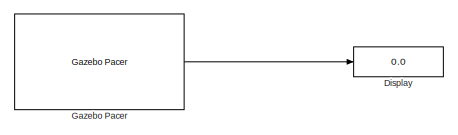
[diagram: root canvas - part 1/2, top center region]
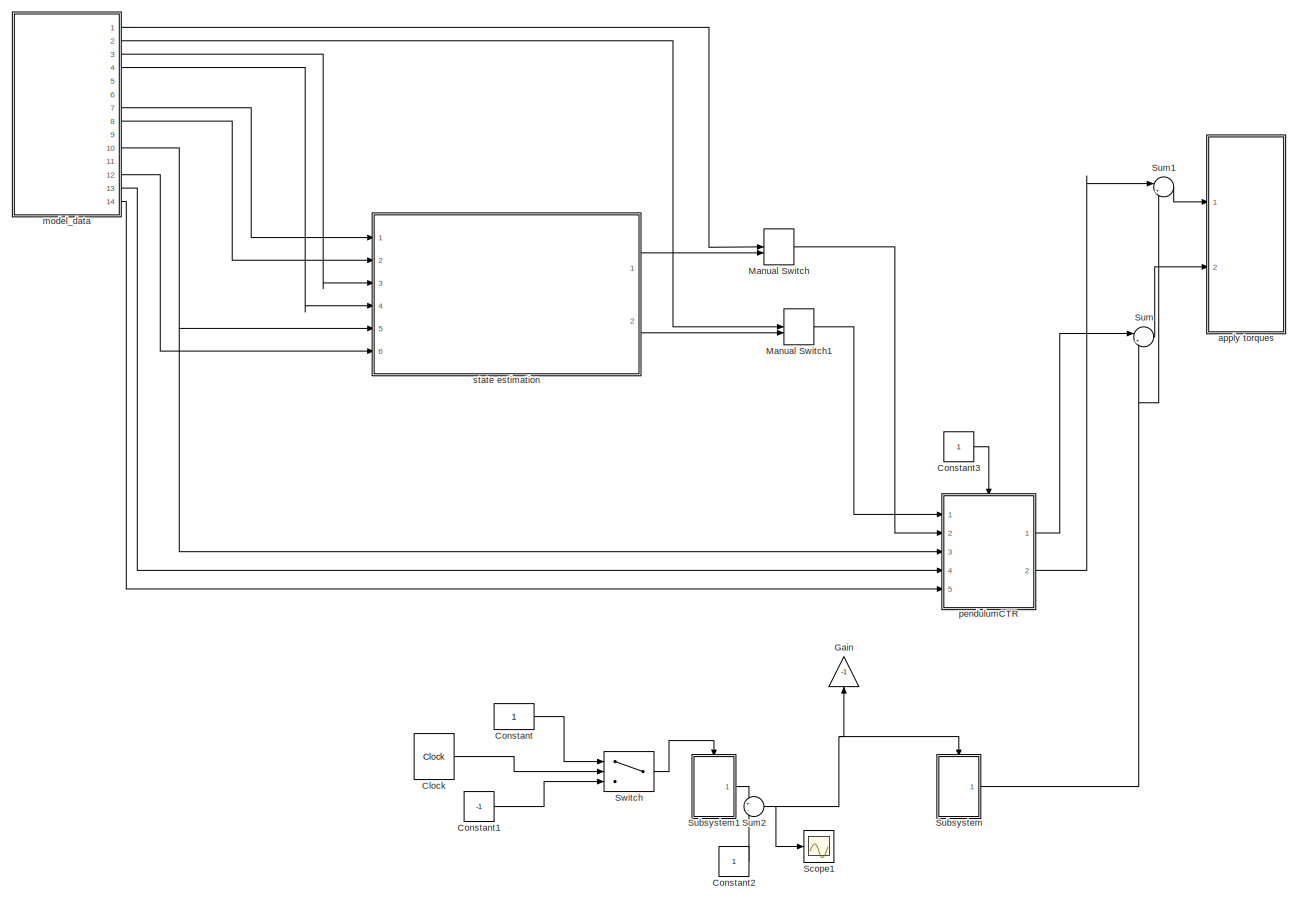
[diagram: root canvas - part 2/2, most of the canvas]
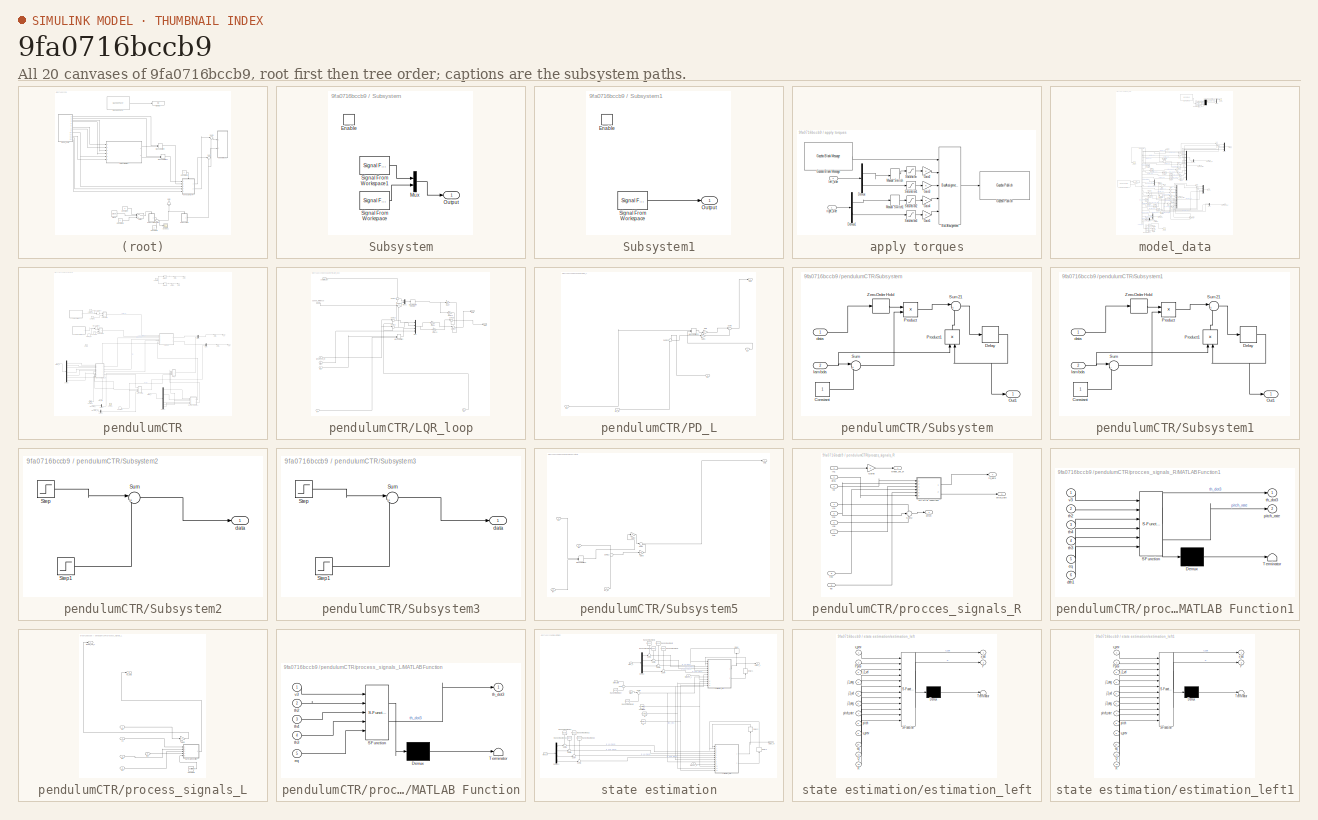
[diagram: thumbnail index - all 20 canvases of the model, root first then tree order]
MODEL slx_9fa0716bccb9
KIND model
CONFIG AbsTol = auto
CONFIG EnableMultiTasking = off
CONFIG FixedStep = auto
CONFIG MaxStep = auto
CONFIG MinStep = auto
CONFIG RelTol = 1e-3
CONFIG SampleTimeConstraint = Unconstrained
CONFIG SolverName = VariableStepAuto
CONFIG StartTime = 0.0
CONFIG StopTime = 11
BLOCK [Clock] Clock
  Commented = on
  Decimation = 1
  DisplayTime = on
BLOCK [Constant] Constant
  Commented = on
BLOCK [Constant] Constant1
  Commented = on
  Value = -1
BLOCK [Constant] Constant2
  Commented = on
BLOCK [Constant] Constant3
BLOCK [Display] Display
  Decimation = 1
  Ports = [1]
BLOCK [Gain] Gain
  Commented = on
  Gain = -1
  NameLocation = right
BLOCK [Reference] Gazebo Pacer  REF=robotgazebolib/Gazebo Pacer
  Ports = [0, 1]
  SourceBlock = robotgazebolib/Gazebo Pacer
  SourceProductBaseCode = RO
  SourceType = Gazebo Pacer
BLOCK [ManualSwitch] Manual Switch
  CurrentSetting = 0
BLOCK [ManualSwitch] Manual Switch1
  CurrentSetting = 0
BLOCK [Scope] Scope1
  Commented = on
  Floating = off
  NumInputPorts = 1
  Ports = [1]
  ScopeSpecificationString = Simulink.scopes.TimeScopeBlockCfg('CurrentConfiguration', extmgr.ConfigurationSet(extmgr.Configuration('Core','General UI',true),extmgr.Configuration('Core','Source UI',true),extmgr.Configuration('Sources','WiredSimulink',true,'DataLoggingVariableName','ScopeData2'),extmgr.Configuration('Visuals','Time Domain',true,'SerializedDisplays',{struct('MinYLimReal','-1.25','MaxYLimReal','1.25','YLabelReal...<+1345ch>
BLOCK [SubSystem] Subsystem
  Commented = on
  Ports = [0, 1, 1]
  RequestExecContextInheritance = off
BLOCK [EnablePort] Subsystem/Enable
  Ports = []
  StatesWhenEnabling = reset
BLOCK [Mux] Subsystem/Mux
  DisplayOption = bar
  Inputs = 2
  Ports = [2, 1]
BLOCK [Outport] Subsystem/Output
BLOCK [Reference] Subsystem/Signal From Workspace  REF=dspsrcs4/Signal From
Workspace
  Ports = [0, 1]
  SourceBlock = dspsrcs4/Signal From\nWorkspace
  SourceProductBaseCode = DS
  SourceType = Signal From Workspace
BLOCK [Reference] Subsystem/Signal From Workspace1  REF=dspsrcs4/Signal From
Workspace
  Ports = [0, 1]
  SourceBlock = dspsrcs4/Signal From\nWorkspace
  SourceProductBaseCode = DS
  SourceType = Signal From Workspace
BLOCK [SubSystem] Subsystem1
  Commented = on
  Ports = [0, 1, 1]
  RequestExecContextInheritance = off
BLOCK [EnablePort] Subsystem1/Enable
  Ports = []
  StatesWhenEnabling = reset
BLOCK [Outport] Subsystem1/Output
BLOCK [Reference] Subsystem1/Signal From Workspace  REF=dspsrcs4/Signal From
Workspace
  Ports = [0, 1]
  SourceBlock = dspsrcs4/Signal From\nWorkspace
  SourceProductBaseCode = DS
  SourceType = Signal From Workspace
BLOCK [Sum] Sum
  Inputs = |++
  Ports = [2, 1]
BLOCK [Sum] Sum1
  Inputs = |++
  Ports = [2, 1]
BLOCK [Sum] Sum2
  Commented = on
  Inputs = +-
  Ports = [2, 1]
BLOCK [Switch] Switch
  Commented = on
  Criteria = u2 > Threshold
  InputSameDT = off
  SaturateOnIntegerOverflow = off
BLOCK [SubSystem] apply torques
  Ports = [2]
  RequestExecContextInheritance = off
BLOCK [BusAssignment] apply torques/Bus Assignment
  AssignedSignals = u0l,u3l,u0r,u3r
  Ports = [5, 1]
BLOCK [Demux] apply torques/Demux
  Outputs = 2
  Ports = [1, 2]
BLOCK [Demux] apply torques/Demux1
  Outputs = 2
  Ports = [1, 2]
BLOCK [Gain] apply torques/Gain2
BLOCK [Gain] apply torques/Gain3
BLOCK [Gain] apply torques/Gain4
BLOCK [Gain] apply torques/Gain5
BLOCK [Reference] apply torques/Gazebo Blank Message  REF=robotgazebolib/Gazebo Blank Message
  Ports = [0, 1]
  SourceBlock = robotgazebolib/Gazebo Blank Message
  SourceProductBaseCode = RO
  SourceType = Gazebo Blank Message
BLOCK [Reference] apply torques/Gazebo Publish  REF=robotgazebolib/Gazebo Publish
  Ports = [1]
  SourceBlock = robotgazebolib/Gazebo Publish
  SourceProductBaseCode = RO
  SourceType = Gazebo Publish
BLOCK [ManualSwitch] apply torques/Manual Switch
  CurrentSetting = 0
BLOCK [ManualSwitch] apply torques/Manual Switch1
BLOCK [Saturate] apply torques/Saturation
  LowerLimit = -2
  UpperLimit = 2
BLOCK [Saturate] apply torques/Saturation1
  LowerLimit = -10
  UpperLimit = 10
BLOCK [Saturate] apply torques/Saturation2
  LowerLimit = -2
  UpperLimit = 2
BLOCK [Saturate] apply torques/Saturation3
  LowerLimit = -10
  UpperLimit = 10
BLOCK [Inport] apply torques/left_side
  Port = 2
BLOCK [Inport] apply torques/right_side
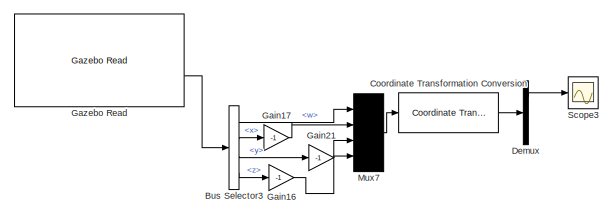
[diagram: model_data - part 1/4, top right region]
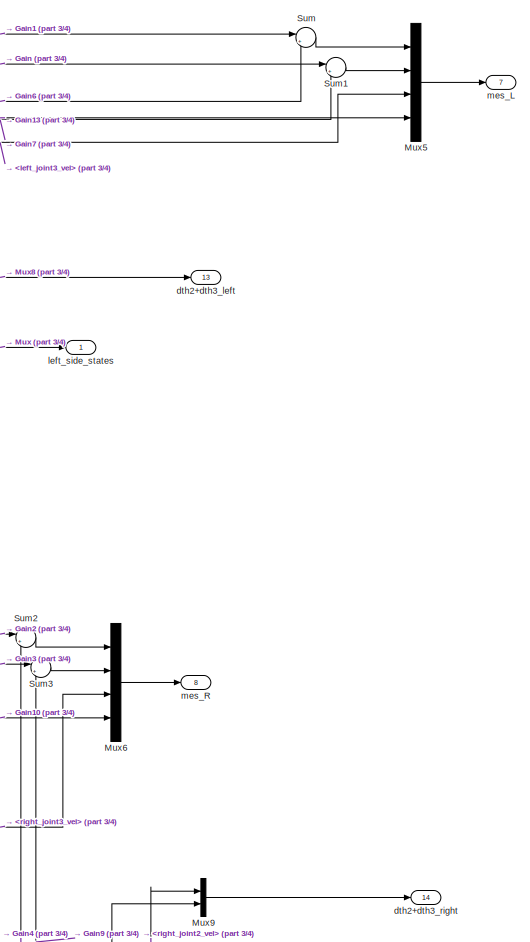
[diagram: model_data - part 2/4, middle right region]
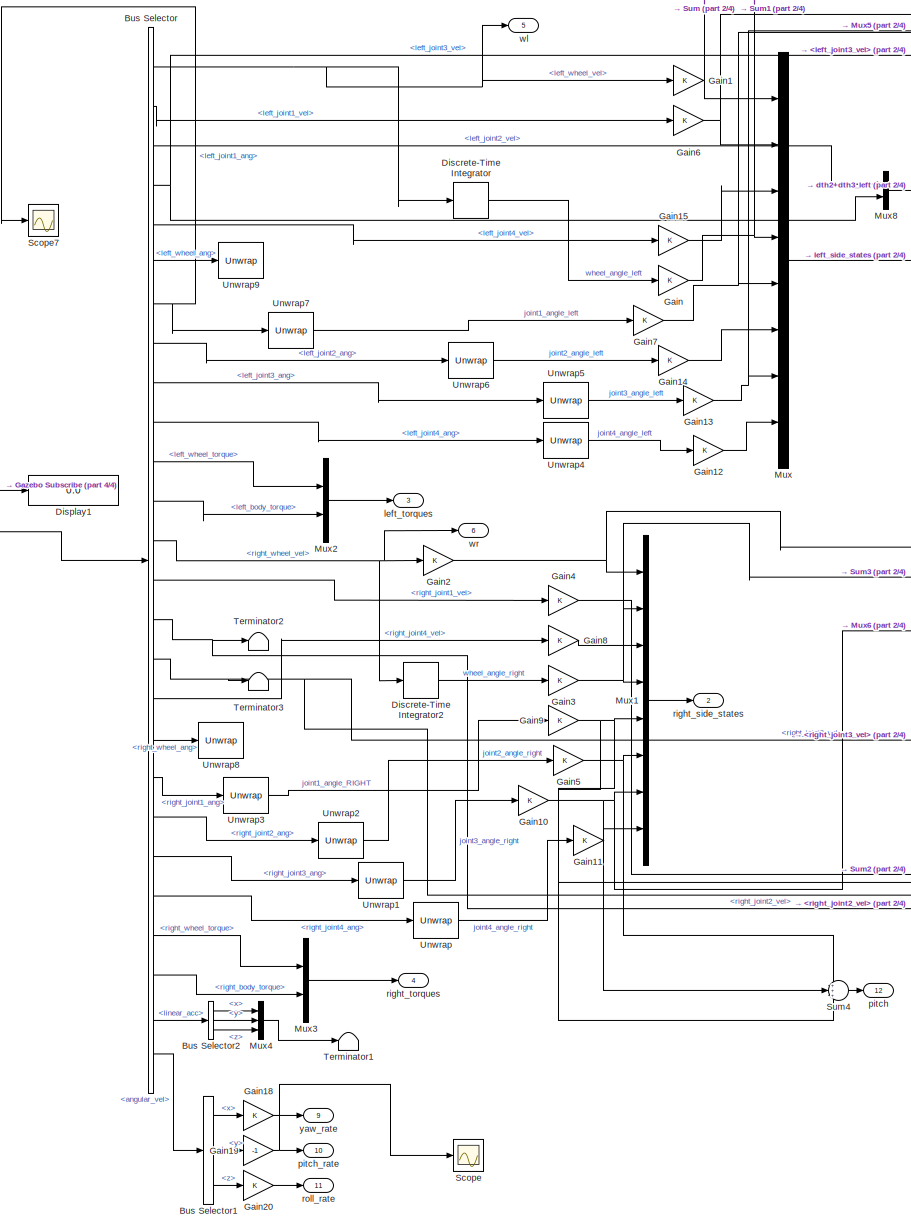
[diagram: model_data - part 3/4, bottom center region]
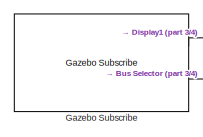
[diagram: model_data - part 4/4, middle left region]
BLOCK [SubSystem] model_data
  Ports = [0, 14]
  RequestExecContextInheritance = off
BLOCK [BusSelector] model_data/Bus Selector
  OutputSignals = left_wheel_vel,left_joint1_vel,left_joint2_vel,left_joint3_vel,left_joint4_vel,left_wheel_ang,left_joint1_ang,left_joint2_ang,left_joint3_ang,left_joint4_ang,left_wheel_torque,left_body_torque,right_wheel_vel,right_joint1_vel,right_joint2_vel,right_joint3_vel,right_joint4_vel,right_wheel_ang,right_joint1_ang,right_joint2_ang,right_joint3_ang,right_joint4_ang,right_wheel_torque,right_body_torque,li...<+20ch>
  Ports = [1, 26]
BLOCK [BusSelector] model_data/Bus Selector1
  NameLocation = left
  OutputSignals = x,y,z
  Ports = [1, 3]
BLOCK [BusSelector] model_data/Bus Selector2
  OutputSignals = x,y,z
  Ports = [1, 3]
BLOCK [BusSelector] model_data/Bus Selector3
  OutputSignals = world_pose.orientation.w,world_pose.orientation.x,world_pose.orientation.y,world_pose.orientation.z
  Ports = [1, 4]
BLOCK [Reference] model_data/Coordinate Transformation Conversion  REF=robotcorelib/Coordinate Transformation Conversion
  Ports = [1, 1]
  SourceBlock = robotcorelib/Coordinate Transformation Conversion
  SourceProductName = Robotics System Toolbox
  SourceType = robotics.slcore.internal.block.CoordinateTransformationConversion
BLOCK [Demux] model_data/Demux
  Outputs = 3
  Ports = [1, 3]
BLOCK [DiscreteIntegrator] model_data/Discrete-Time Integrator
  ICPrevOutput = DiscIntNeverNeededParam
  ICPrevScaledInput = DiscIntNeverNeededParam
  InitialConditionSetting = Auto
  Ports = [1, 1]
  SampleTime = -1
  gainval = 1
BLOCK [DiscreteIntegrator] model_data/Discrete-Time Integrator2
  ICPrevOutput = DiscIntNeverNeededParam
  ICPrevScaledInput = DiscIntNeverNeededParam
  InitialConditionSetting = Auto
  Ports = [1, 1]
  SampleTime = -1
  gainval = 1
BLOCK [Display] model_data/Display1
  Decimation = 1
  Ports = [1]
BLOCK [Gain] model_data/Gain
BLOCK [Gain] model_data/Gain1
BLOCK [Gain] model_data/Gain10
BLOCK [Gain] model_data/Gain11
BLOCK [Gain] model_data/Gain12
BLOCK [Gain] model_data/Gain13
BLOCK [Gain] model_data/Gain14
BLOCK [Gain] model_data/Gain15
BLOCK [Gain] model_data/Gain16
  Gain = -1
BLOCK [Gain] model_data/Gain17
  Gain = -1
BLOCK [Gain] model_data/Gain18
BLOCK [Gain] model_data/Gain19
  Gain = -1
BLOCK [Gain] model_data/Gain2
BLOCK [Gain] model_data/Gain20
BLOCK [Gain] model_data/Gain21
  Gain = -1
BLOCK [Gain] model_data/Gain3
BLOCK [Gain] model_data/Gain4
BLOCK [Gain] model_data/Gain5
BLOCK [Gain] model_data/Gain6
BLOCK [Gain] model_data/Gain7
BLOCK [Gain] model_data/Gain8
BLOCK [Gain] model_data/Gain9
BLOCK [Reference] model_data/Gazebo Read  REF=robotgazebolib/Gazebo Read
  Ports = [0, 2]
  SourceBlock = robotgazebolib/Gazebo Read
  SourceProductBaseCode = RO
  SourceType = Gazebo Read
BLOCK [Reference] model_data/Gazebo Subscribe  REF=robotgazebolib/Gazebo Subscribe
  Ports = [0, 2]
  SourceBlock = robotgazebolib/Gazebo Subscribe
  SourceProductBaseCode = RO
  SourceType = Gazebo Subscribe
BLOCK [Mux] model_data/Mux
  DisplayOption = bar
  Inputs = 8
  Ports = [8, 1]
BLOCK [Mux] model_data/Mux1
  DisplayOption = bar
  Inputs = 8
  Ports = [8, 1]
BLOCK [Mux] model_data/Mux2
  DisplayOption = bar
  Inputs = 2
  Ports = [2, 1]
BLOCK [Mux] model_data/Mux3
  DisplayOption = bar
  Inputs = 2
  Ports = [2, 1]
BLOCK [Mux] model_data/Mux4
  DisplayOption = bar
  Inputs = 3
  Ports = [3, 1]
BLOCK [Mux] model_data/Mux5
  DisplayOption = bar
  Ports = [4, 1]
BLOCK [Mux] model_data/Mux6
  DisplayOption = bar
  Ports = [4, 1]
BLOCK [Mux] model_data/Mux7
  DisplayOption = bar
  Ports = [4, 1]
BLOCK [Mux] model_data/Mux8
  DisplayOption = bar
  Inputs = 2
  Ports = [2, 1]
BLOCK [Mux] model_data/Mux9
  DisplayOption = bar
  Inputs = 2
  Ports = [2, 1]
BLOCK [Scope] model_data/Scope
  Floating = off
  NumInputPorts = 1
  Ports = [1]
  ScopeSpecificationString = Simulink.scopes.TimeScopeBlockCfg('CurrentConfiguration', extmgr.ConfigurationSet(extmgr.Configuration('Core','General UI',true),extmgr.Configuration('Core','Source UI',true),extmgr.Configuration('Sources','WiredSimulink',true,'DataLoggingVariableName','ScopeData4'),extmgr.Configuration('Visuals','Time Domain',true,'SerializedDisplays',{struct('MinYLimReal','-1.29238','MaxYLimReal','1.59289','YLab...<+1420ch>
BLOCK [Scope] model_data/Scope3
  Floating = off
  NumInputPorts = 1
  Ports = [1]
  ScopeSpecificationString = Simulink.scopes.TimeScopeBlockCfg('CurrentConfiguration', extmgr.ConfigurationSet(extmgr.Configuration('Core','General UI',true),extmgr.Configuration('Core','Source UI',true),extmgr.Configuration('Sources','WiredSimulink',true,'DataLoggingVariableName','ScopeData1'),extmgr.Configuration('Visuals','Time Domain',true,'SerializedDisplays',{struct('MinYLimReal','-3.92668','MaxYLimReal','3.92692','YLab...<+1437ch>
BLOCK [Scope] model_data/Scope7
  Floating = off
  NumInputPorts = 1
  Ports = [1]
  ScopeSpecificationString = Simulink.scopes.TimeScopeBlockCfg('CurrentConfiguration', extmgr.ConfigurationSet(extmgr.Configuration('Core','General UI',true),extmgr.Configuration('Core','Source UI',true),extmgr.Configuration('Sources','WiredSimulink',true,'DataLoggingVariableName','ScopeData3'),extmgr.Configuration('Visuals','Time Domain',true,'SerializedDisplays',{struct('MinYLimReal','-0.00014','MaxYLimReal','0.00129','YLab...<+1428ch>
BLOCK [Sum] model_data/Sum
  Inputs = |++
  Ports = [2, 1]
BLOCK [Sum] model_data/Sum1
  Inputs = |++
  Ports = [2, 1]
BLOCK [Sum] model_data/Sum2
  Inputs = |++
  Ports = [2, 1]
BLOCK [Sum] model_data/Sum3
  Inputs = |++
  Ports = [2, 1]
BLOCK [Sum] model_data/Sum4
  Inputs = +++
  Ports = [3, 1]
BLOCK [Terminator] model_data/Terminator1
BLOCK [Terminator] model_data/Terminator2
BLOCK [Terminator] model_data/Terminator3
BLOCK [Reference] model_data/Unwrap  REF=dspsigops/Unwrap
  Ports = [1, 1]
  SourceBlock = dspsigops/Unwrap
  SourceProductBaseCode = DS
  SourceType = Unwrap
  UserDataPersistent = on
BLOCK [Reference] model_data/Unwrap1  REF=dspsigops/Unwrap
  Ports = [1, 1]
  SourceBlock = dspsigops/Unwrap
  SourceProductBaseCode = DS
  SourceType = Unwrap
  UserDataPersistent = on
BLOCK [Reference] model_data/Unwrap2  REF=dspsigops/Unwrap
  Ports = [1, 1]
  SourceBlock = dspsigops/Unwrap
  SourceProductBaseCode = DS
  SourceType = Unwrap
  UserDataPersistent = on
BLOCK [Reference] model_data/Unwrap3  REF=dspsigops/Unwrap
  Ports = [1, 1]
  SourceBlock = dspsigops/Unwrap
  SourceProductBaseCode = DS
  SourceType = Unwrap
  UserDataPersistent = on
BLOCK [Reference] model_data/Unwrap4  REF=dspsigops/Unwrap
  Ports = [1, 1]
  SourceBlock = dspsigops/Unwrap
  SourceProductBaseCode = DS
  SourceType = Unwrap
  UserDataPersistent = on
BLOCK [Reference] model_data/Unwrap5  REF=dspsigops/Unwrap
  Ports = [1, 1]
  SourceBlock = dspsigops/Unwrap
  SourceProductBaseCode = DS
  SourceType = Unwrap
  UserDataPersistent = on
BLOCK [Reference] model_data/Unwrap6  REF=dspsigops/Unwrap
  Ports = [1, 1]
  SourceBlock = dspsigops/Unwrap
  SourceProductBaseCode = DS
  SourceType = Unwrap
  UserDataPersistent = on
BLOCK [Reference] model_data/Unwrap7  REF=dspsigops/Unwrap
  Ports = [1, 1]
  SourceBlock = dspsigops/Unwrap
  SourceProductBaseCode = DS
  SourceType = Unwrap
  UserDataPersistent = on
BLOCK [Reference] model_data/Unwrap8  REF=dspsigops/Unwrap
  Ports = [1, 1]
  SourceBlock = dspsigops/Unwrap
  SourceProductBaseCode = DS
  SourceType = Unwrap
  UserDataPersistent = on
BLOCK [Reference] model_data/Unwrap9  REF=dspsigops/Unwrap
  Ports = [1, 1]
  SourceBlock = dspsigops/Unwrap
  SourceProductBaseCode = DS
  SourceType = Unwrap
  UserDataPersistent = on
BLOCK [Outport] model_data/dth2+dth3_left
  Port = 13
BLOCK [Outport] model_data/dth2+dth3_right
  Port = 14
BLOCK [Outport] model_data/left_side_states
BLOCK [Outport] model_data/left_torques
  Port = 3
BLOCK [Outport] model_data/mes_L
  Port = 7
BLOCK [Outport] model_data/mes_R
  Port = 8
BLOCK [Outport] model_data/pitch
  Port = 12
BLOCK [Outport] model_data/pitch_rate
  Port = 10
BLOCK [Outport] model_data/right_side_states
  Port = 2
BLOCK [Outport] model_data/right_torques
  Port = 4
BLOCK [Outport] model_data/roll_rate
  Port = 11
BLOCK [Outport] model_data/wl
  Port = 5
BLOCK [Outport] model_data/wr
  Port = 6
BLOCK [Outport] model_data/yaw_rate
  Port = 9
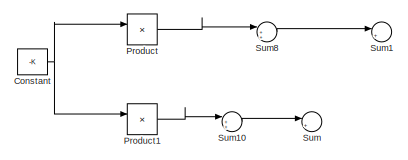
[diagram: pendulumCTR - part 1/4, top center region]
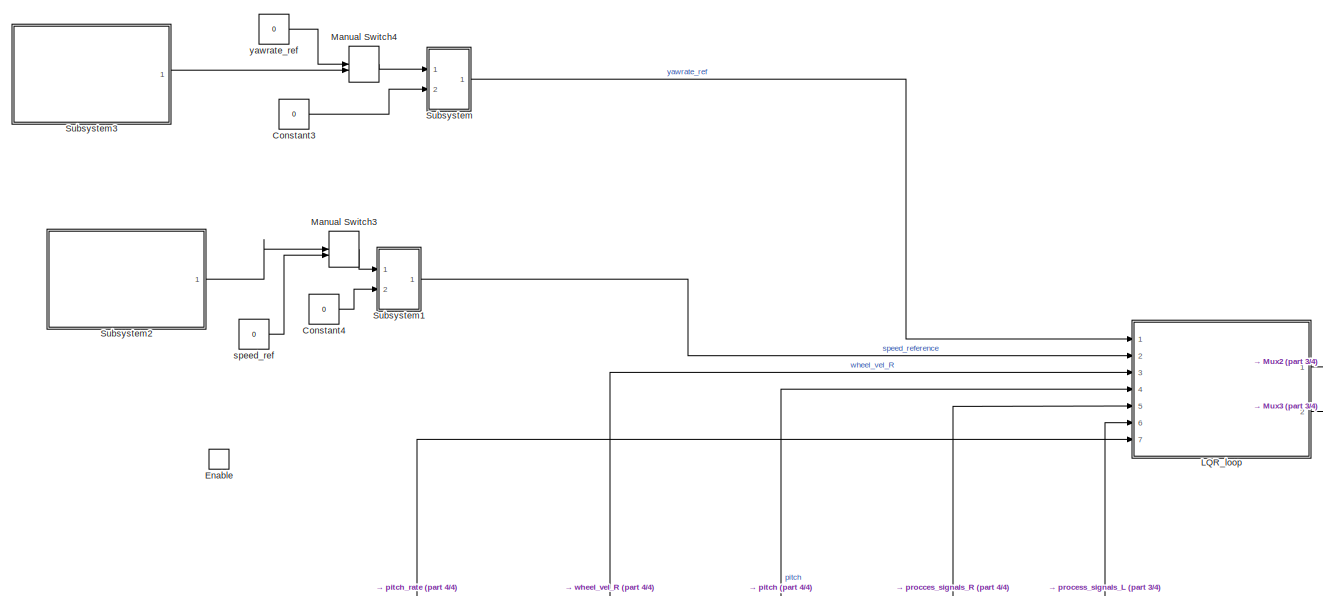
[diagram: pendulumCTR - part 2/4, central region]
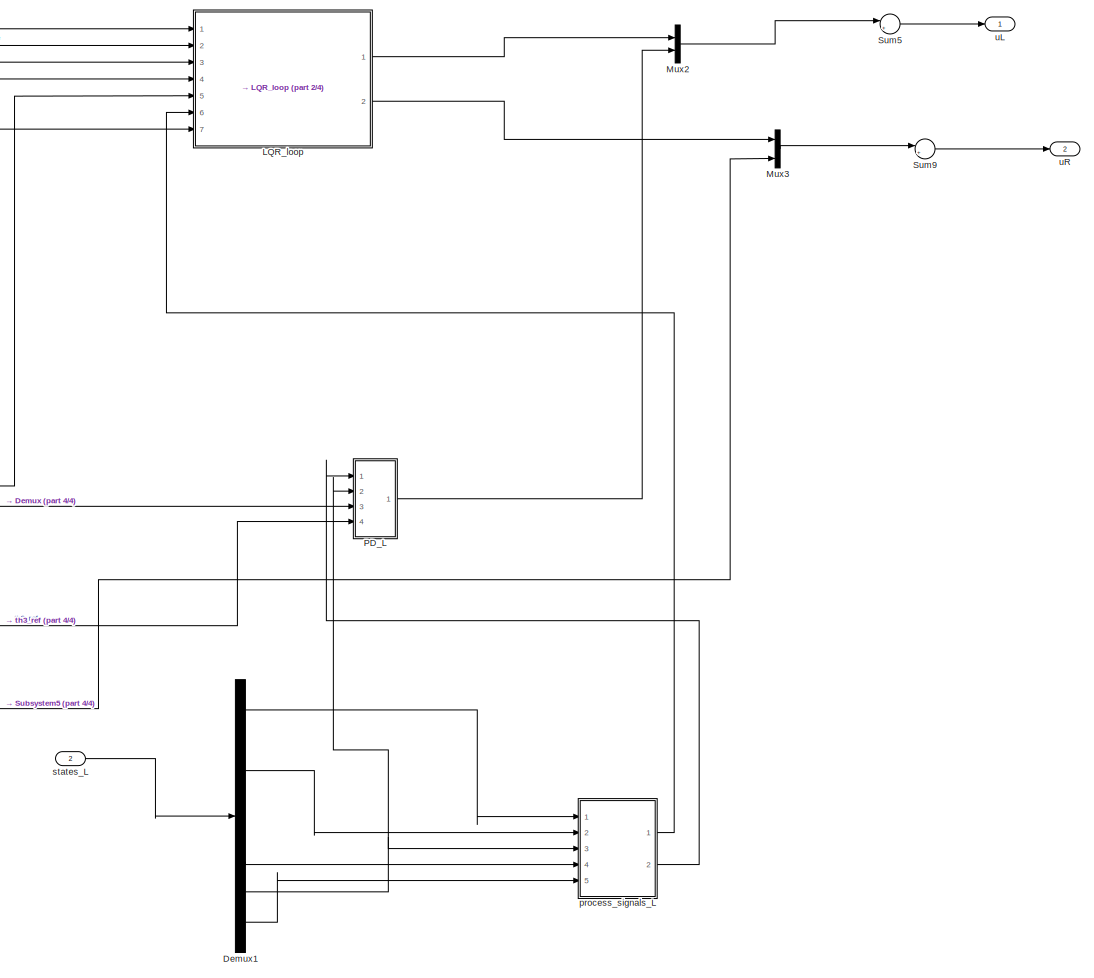
[diagram: pendulumCTR - part 3/4, bottom right region]
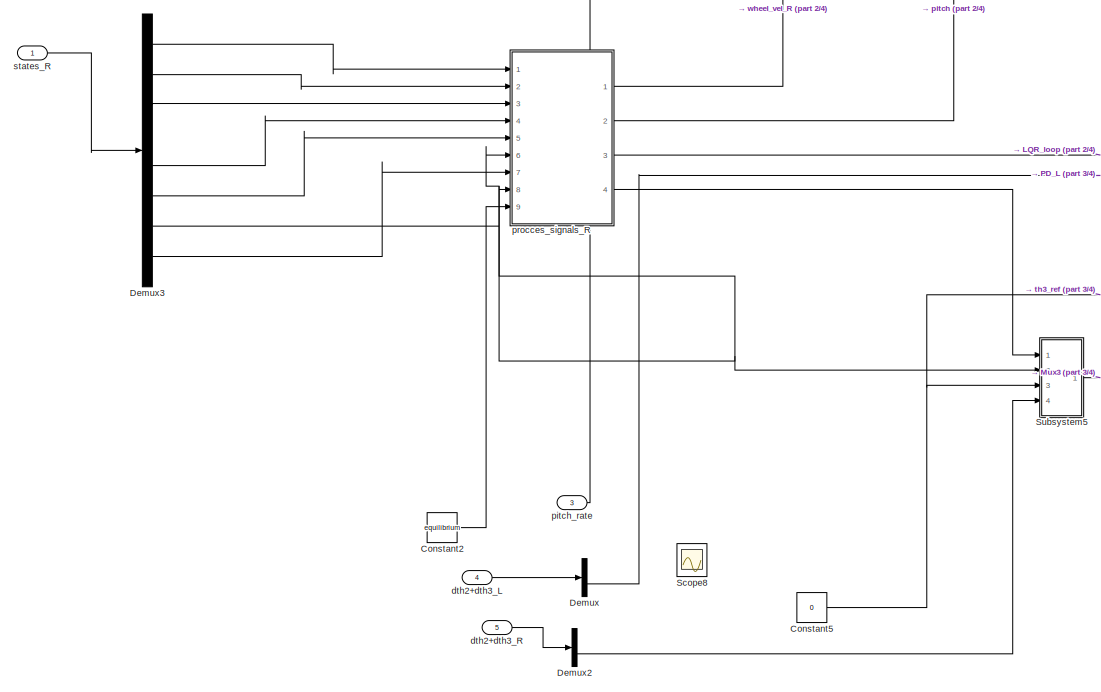
[diagram: pendulumCTR - part 4/4, bottom left region]
BLOCK [SubSystem] pendulumCTR
  Ports = [5, 2, 1]
  RequestExecContextInheritance = off
BLOCK [Constant] pendulumCTR/Constant
  Commented = on
  Value = -K
BLOCK [Constant] pendulumCTR/Constant2
  Value = equilibrium
BLOCK [Constant] pendulumCTR/Constant3
  Value = 0
BLOCK [Constant] pendulumCTR/Constant4
  Value = 0
BLOCK [Constant] pendulumCTR/Constant5
  Value = 0
BLOCK [Demux] pendulumCTR/Demux
  Outputs = 2
  Ports = [1, 2]
BLOCK [Demux] pendulumCTR/Demux1
  Outputs = 8
  Ports = [1, 8]
BLOCK [Demux] pendulumCTR/Demux2
  Outputs = 2
  Ports = [1, 2]
BLOCK [Demux] pendulumCTR/Demux3
  Outputs = 8
  Ports = [1, 8]
BLOCK [EnablePort] pendulumCTR/Enable
  Ports = []
  StatesWhenEnabling = reset
BLOCK [SubSystem] pendulumCTR/LQR_loop
  Ports = [7, 2]
  RequestExecContextInheritance = off
BLOCK [DiscreteIntegrator] pendulumCTR/LQR_loop/Discrete-Time Integrator
  ICPrevOutput = DiscIntNeverNeededParam
  ICPrevScaledInput = DiscIntNeverNeededParam
  InitialConditionSetting = Auto
  IntegratorMethod = Accumulation: Forward Euler
  Ports = [1, 1]
  SampleTime = 0.001
  gainval = 1
BLOCK [Gain] pendulumCTR/LQR_loop/Gain12
  Gain = -KI(2,:)
  Multiplication = Matrix(K*u)
BLOCK [Gain] pendulumCTR/LQR_loop/Gain13
  Gain = -Kpend(2,:)
  Multiplication = Matrix(K*u)
BLOCK [Gain] pendulumCTR/LQR_loop/Gain4
  Gain = -Kpend(1,:)
  Multiplication = Matrix(K*u)
BLOCK [Gain] pendulumCTR/LQR_loop/Gain7
  Gain = -KI(1,:)
  Multiplication = Matrix(K*u)
BLOCK [Inport] pendulumCTR/LQR_loop/In5
  Port = 5
BLOCK [Inport] pendulumCTR/LQR_loop/In6
  Port = 6
BLOCK [Inport] pendulumCTR/LQR_loop/In7
  Port = 7
BLOCK [ManualSwitch] pendulumCTR/LQR_loop/Manual Switch
BLOCK [Mux] pendulumCTR/LQR_loop/Mux
  DisplayOption = bar
  Ports = [4, 1]
BLOCK [Mux] pendulumCTR/LQR_loop/Mux1
  DisplayOption = bar
  Inputs = 2
  Ports = [2, 1]
BLOCK [Outport] pendulumCTR/LQR_loop/Out1
BLOCK [Outport] pendulumCTR/LQR_loop/Out2
  Port = 2
BLOCK [Sum] pendulumCTR/LQR_loop/Sum12
  Inputs = |++
  Ports = [2, 1]
BLOCK [Sum] pendulumCTR/LQR_loop/Sum13
  Inputs = |+-
  Ports = [2, 1]
BLOCK [Sum] pendulumCTR/LQR_loop/Sum17
  Inputs = |++
  Ports = [2, 1]
BLOCK [Sum] pendulumCTR/LQR_loop/Sum18
  Inputs = |++
  Ports = [2, 1]
BLOCK [Sum] pendulumCTR/LQR_loop/Sum19
  Inputs = +-
  Ports = [2, 1]
BLOCK [Sum] pendulumCTR/LQR_loop/Sum20
  Inputs = +-
  Ports = [2, 1]
BLOCK [Inport] pendulumCTR/LQR_loop/pitch
  Port = 4
BLOCK [Inport] pendulumCTR/LQR_loop/speed_reference
  Port = 2
BLOCK [Inport] pendulumCTR/LQR_loop/wheel_vel_R
  Port = 3
BLOCK [Inport] pendulumCTR/LQR_loop/yawrate_ref
BLOCK [ManualSwitch] pendulumCTR/Manual Switch3
BLOCK [ManualSwitch] pendulumCTR/Manual Switch4
BLOCK [Mux] pendulumCTR/Mux2
  DisplayOption = bar
  Inputs = 2
  Ports = [2, 1]
BLOCK [Mux] pendulumCTR/Mux3
  DisplayOption = bar
  Inputs = 3
  Ports = [3, 1]
BLOCK [SubSystem] pendulumCTR/PD_L
  Ports = [4, 1]
  RequestExecContextInheritance = off
BLOCK [Gain] pendulumCTR/PD_L/Gain
  Gain = -2
BLOCK [Gain] pendulumCTR/PD_L/Gain1
  Gain = -40
BLOCK [Inport] pendulumCTR/PD_L/In1
BLOCK [Inport] pendulumCTR/PD_L/In2
  Port = 2
BLOCK [Inport] pendulumCTR/PD_L/In3
  Port = 3
BLOCK [ManualSwitch] pendulumCTR/PD_L/Manual Switch2
  CurrentSetting = 0
BLOCK [Outport] pendulumCTR/PD_L/Out1
BLOCK [Sum] pendulumCTR/PD_L/Sum22
  Inputs = +-
  Ports = [2, 1]
BLOCK [Sum] pendulumCTR/PD_L/Sum6
  Inputs = |++
  Ports = [2, 1]
BLOCK [Inport] pendulumCTR/PD_L/th3_ref
  Port = 4
BLOCK [Product] pendulumCTR/Product
  Commented = on
  Multiplication = Matrix(*)
  Ports = [2, 1]
BLOCK [Product] pendulumCTR/Product1
  Commented = on
  Multiplication = Matrix(*)
  Ports = [2, 1]
BLOCK [Scope] pendulumCTR/Scope8
  Floating = off
  NumInputPorts = 2
  Ports = [2]
  ScopeSpecificationString = Simulink.scopes.TimeScopeBlockCfg('CurrentConfiguration', extmgr.ConfigurationSet(extmgr.Configuration('Core','General UI',true),extmgr.Configuration('Core','Source UI',true),extmgr.Configuration('Sources','WiredSimulink',true,'DataLoggingVariableName','ScopeData6'),extmgr.Configuration('Visuals','Time Domain',true,'SerializedDisplays',{struct('MinYLimReal','-0.60762','MaxYLimReal','0.33513','YLab...<+1466ch>
BLOCK [SubSystem] pendulumCTR/Subsystem
  Ports = [2, 1]
  RequestExecContextInheritance = off
BLOCK [Constant] pendulumCTR/Subsystem/Constant
BLOCK [Delay] pendulumCTR/Subsystem/Delay
  DelayLength = 1
  InputPortMap = u0
  Ports = [1, 1]
  SampleTime = 0.01
BLOCK [Outport] pendulumCTR/Subsystem/Out1
BLOCK [Product] pendulumCTR/Subsystem/Product
  Ports = [2, 1]
BLOCK [Product] pendulumCTR/Subsystem/Product1
  NameLocation = right
  Ports = [2, 1]
BLOCK [Sum] pendulumCTR/Subsystem/Sum
  Inputs = |+-
  Ports = [2, 1]
BLOCK [Sum] pendulumCTR/Subsystem/Sum21
  Inputs = |++
  Ports = [2, 1]
BLOCK [ZeroOrderHold] pendulumCTR/Subsystem/Zero-Order Hold
  SampleTime = 0.01
BLOCK [Inport] pendulumCTR/Subsystem/data
BLOCK [Inport] pendulumCTR/Subsystem/lambda
  Port = 2
BLOCK [SubSystem] pendulumCTR/Subsystem1
  Ports = [2, 1]
  RequestExecContextInheritance = off
BLOCK [Constant] pendulumCTR/Subsystem1/Constant
BLOCK [Delay] pendulumCTR/Subsystem1/Delay
  DelayLength = 1
  InputPortMap = u0
  Ports = [1, 1]
  SampleTime = 0.01
BLOCK [Outport] pendulumCTR/Subsystem1/Out1
BLOCK [Product] pendulumCTR/Subsystem1/Product
  Ports = [2, 1]
BLOCK [Product] pendulumCTR/Subsystem1/Product1
  NameLocation = right
  Ports = [2, 1]
BLOCK [Sum] pendulumCTR/Subsystem1/Sum
  Inputs = |-+
  Ports = [2, 1]
BLOCK [Sum] pendulumCTR/Subsystem1/Sum21
  Inputs = |++
  Ports = [2, 1]
BLOCK [ZeroOrderHold] pendulumCTR/Subsystem1/Zero-Order Hold
  SampleTime = 0.01
BLOCK [Inport] pendulumCTR/Subsystem1/data
BLOCK [Inport] pendulumCTR/Subsystem1/lambda
  Port = 2
BLOCK [SubSystem] pendulumCTR/Subsystem2
  Ports = [0, 1]
  RequestExecContextInheritance = off
BLOCK [Step] pendulumCTR/Subsystem2/Step
  After = -15
  SampleTime = 0
  Time = 2
BLOCK [Step] pendulumCTR/Subsystem2/Step1
  After = 15
  SampleTime = 0
  Time = 7.5
BLOCK [Sum] pendulumCTR/Subsystem2/Sum
  Inputs = |++
  Ports = [2, 1]
BLOCK [Outport] pendulumCTR/Subsystem2/data
BLOCK [SubSystem] pendulumCTR/Subsystem3
  Ports = [0, 1]
  RequestExecContextInheritance = off
BLOCK [Step] pendulumCTR/Subsystem3/Step
  After = 5
  SampleTime = 0
  Time = 4.5
BLOCK [Step] pendulumCTR/Subsystem3/Step1
  After = -5
  SampleTime = 0
  Time = 7.5
BLOCK [Sum] pendulumCTR/Subsystem3/Sum
  Inputs = |++
  Ports = [2, 1]
BLOCK [Outport] pendulumCTR/Subsystem3/data
BLOCK [SubSystem] pendulumCTR/Subsystem5
  Ports = [4, 1]
  RequestExecContextInheritance = off
BLOCK [Gain] pendulumCTR/Subsystem5/Gain2
  Gain = -2
BLOCK [Gain] pendulumCTR/Subsystem5/Gain3
  Gain = -40
BLOCK [Inport] pendulumCTR/Subsystem5/In1
BLOCK [Inport] pendulumCTR/Subsystem5/In2
  Port = 2
BLOCK [Inport] pendulumCTR/Subsystem5/In4
  Port = 4
BLOCK [ManualSwitch] pendulumCTR/Subsystem5/Manual Switch1
BLOCK [Outport] pendulumCTR/Subsystem5/Out1
BLOCK [Sum] pendulumCTR/Subsystem5/Sum21
  Inputs = +-
  Ports = [2, 1]
BLOCK [Sum] pendulumCTR/Subsystem5/Sum7
  Inputs = |++
  Ports = [2, 1]
BLOCK [Inport] pendulumCTR/Subsystem5/th3_ref
  Port = 3
BLOCK [Sum] pendulumCTR/Sum
  Commented = on
  Inputs = |++
  Ports = [2, 1]
BLOCK [Sum] pendulumCTR/Sum1
  Commented = on
  Inputs = |+-
  Ports = [2, 1]
BLOCK [Sum] pendulumCTR/Sum10
  Commented = on
  Inputs = |+++
  Ports = [3, 1]
BLOCK [Sum] pendulumCTR/Sum5
  Inputs = |+-
  Ports = [2, 1]
BLOCK [Sum] pendulumCTR/Sum8
  Commented = on
  Inputs = |+++
  Ports = [3, 1]
BLOCK [Sum] pendulumCTR/Sum9
  Inputs = |++
  Ports = [2, 1]
BLOCK [Inport] pendulumCTR/dth2+dth3_L
  Port = 4
BLOCK [Inport] pendulumCTR/dth2+dth3_R
  Port = 5
BLOCK [Inport] pendulumCTR/pitch_rate
  Port = 3
BLOCK [SubSystem] pendulumCTR/procces_signals_R
  Ports = [9, 4]
  RequestExecContextInheritance = off
BLOCK [Gain] pendulumCTR/procces_signals_R/Gain8
BLOCK [Inport] pendulumCTR/procces_signals_R/In1
BLOCK [Inport] pendulumCTR/procces_signals_R/In4
  Port = 4
BLOCK [Inport] pendulumCTR/procces_signals_R/In6
  Port = 6
BLOCK [SubSystem] pendulumCTR/procces_signals_R/MATLAB Function1
  ErrorFcn = Stateflow.Translate.translate
  PermitHierarchicalResolution = ExplicitOnly
  Ports = [6, 2]
  RequestExecContextInheritance = off
  SFBlockType = MATLAB Function
  TreatAsAtomicUnit = on
BLOCK [Demux] pendulumCTR/procces_signals_R/MATLAB Function1/ Demux 
  Outputs = 1
  Ports = [1, 1]
BLOCK [S-Function] pendulumCTR/procces_signals_R/MATLAB Function1/ SFunction 
  EnableBusSupport = on
  FunctionName = sf_sfun
  PortCounts = [6 3]
  Ports = [6, 3]
  SFcnIsStateOwnerBlock = off
  SFunctionDeploymentMode = off
  Tag = Stateflow S-Function 9
BLOCK [Terminator] pendulumCTR/procces_signals_R/MATLAB Function1/ Terminator 
BLOCK [Inport] pendulumCTR/procces_signals_R/MATLAB Function1/dth1
  Port = 6
BLOCK [Inport] pendulumCTR/procces_signals_R/MATLAB Function1/eq
  Port = 5
BLOCK [Outport] pendulumCTR/procces_signals_R/MATLAB Function1/pitch_rate
  Port = 2
BLOCK [Inport] pendulumCTR/procces_signals_R/MATLAB Function1/th2
  Port = 2
BLOCK [Inport] pendulumCTR/procces_signals_R/MATLAB Function1/th3
  Port = 4
BLOCK [Inport] pendulumCTR/procces_signals_R/MATLAB Function1/th4
  Port = 3
BLOCK [Outport] pendulumCTR/procces_signals_R/MATLAB Function1/th_dot3
BLOCK [Inport] pendulumCTR/procces_signals_R/MATLAB Function1/v3
BLOCK [Sum] pendulumCTR/procces_signals_R/Sum2
  Inputs = +++
  Ports = [3, 1]
BLOCK [Inport] pendulumCTR/procces_signals_R/dth1
  Port = 2
BLOCK [Inport] pendulumCTR/procces_signals_R/eq
  Port = 9
BLOCK [Outport] pendulumCTR/procces_signals_R/pitch
  Port = 2
BLOCK [Outport] pendulumCTR/procces_signals_R/pitch_rate
  Port = 3
BLOCK [Inport] pendulumCTR/procces_signals_R/th2
  Port = 5
BLOCK [Inport] pendulumCTR/procces_signals_R/th3
  Port = 8
BLOCK [Inport] pendulumCTR/procces_signals_R/th4
  Port = 7
BLOCK [Outport] pendulumCTR/procces_signals_R/th_dot3
  Port = 4
BLOCK [Inport] pendulumCTR/procces_signals_R/v3
  Port = 3
BLOCK [Outport] pendulumCTR/procces_signals_R/wheel_vel_R
BLOCK [SubSystem] pendulumCTR/process_signals_L
  Ports = [5, 2]
  RequestExecContextInheritance = off
BLOCK [Constant] pendulumCTR/process_signals_L/Constant1
  Value = equilibrium
BLOCK [Gain] pendulumCTR/process_signals_L/Gain6
BLOCK [Inport] pendulumCTR/process_signals_L/In1
BLOCK [SubSystem] pendulumCTR/process_signals_L/MATLAB Function
  ErrorFcn = Stateflow.Translate.translate
  PermitHierarchicalResolution = ExplicitOnly
  Ports = [5, 1]
  RequestExecContextInheritance = off
  SFBlockType = MATLAB Function
  TreatAsAtomicUnit = on
BLOCK [Demux] pendulumCTR/process_signals_L/MATLAB Function/ Demux 
  Outputs = 1
  Ports = [1, 1]
BLOCK [S-Function] pendulumCTR/process_signals_L/MATLAB Function/ SFunction 
  EnableBusSupport = on
  FunctionName = sf_sfun
  PortCounts = [5 2]
  Ports = [5, 2]
  SFcnIsStateOwnerBlock = off
  SFunctionDeploymentMode = off
  Tag = Stateflow S-Function 3
BLOCK [Terminator] pendulumCTR/process_signals_L/MATLAB Function/ Terminator 
BLOCK [Inport] pendulumCTR/process_signals_L/MATLAB Function/eq
  Port = 5
BLOCK [Inport] pendulumCTR/process_signals_L/MATLAB Function/th2
  Port = 2
BLOCK [Inport] pendulumCTR/process_signals_L/MATLAB Function/th3
  Port = 4
BLOCK [Inport] pendulumCTR/process_signals_L/MATLAB Function/th4
  Port = 3
BLOCK [Outport] pendulumCTR/process_signals_L/MATLAB Function/th_dot3
BLOCK [Inport] pendulumCTR/process_signals_L/MATLAB Function/v3
BLOCK [Inport] pendulumCTR/process_signals_L/th2
  Port = 4
BLOCK [Inport] pendulumCTR/process_signals_L/th3
  Port = 3
BLOCK [Inport] pendulumCTR/process_signals_L/th4
  Port = 5
BLOCK [Outport] pendulumCTR/process_signals_L/th_dot3
  Port = 2
BLOCK [Inport] pendulumCTR/process_signals_L/v3
  Port = 2
BLOCK [Outport] pendulumCTR/process_signals_L/wheel_vel_L
BLOCK [Constant] pendulumCTR/speed_ref
  SampleTime = 0.001
  Value = 0
BLOCK [Inport] pendulumCTR/states_L
  Port = 2
BLOCK [Inport] pendulumCTR/states_R
BLOCK [Outport] pendulumCTR/uL
BLOCK [Outport] pendulumCTR/uR
  Port = 2
BLOCK [Constant] pendulumCTR/yawrate_ref
  SampleTime = 0.001
  Value = 0
BLOCK [SubSystem] state estimation
  Ports = [6, 2]
  RequestExecContextInheritance = off
BLOCK [Delay] state estimation/Delay
  DelayLength = 1
  InitialCondition = [0;0;0;0;0;0;0;0]
  InputPortMap = u0
  NameLocation = right
  Ports = [1, 1]
  SampleTime = 0.001
BLOCK [Delay] state estimation/Delay1
  DelayLength = 1
  InitialCondition = 1e-6*eye(8)
  InputPortMap = u0
  NameLocation = right
  Ports = [1, 1]
  SampleTime = 0.001
BLOCK [Delay] state estimation/Delay2
  DelayLength = 1
  InitialCondition = [0;0;0;0;0;0;0;0]
  InputPortMap = u0
  NameLocation = right
  Ports = [1, 1]
  SampleTime = 0.001
BLOCK [Delay] state estimation/Delay3
  DelayLength = 1
  InitialCondition = 1e-6*eye(8)
  InputPortMap = u0
  NameLocation = right
  Ports = [1, 1]
  SampleTime = 0.001
BLOCK [Demux] state estimation/Demux
  Ports = [1, 4]
BLOCK [Demux] state estimation/Demux1
  Ports = [1, 4]
BLOCK [Constant] state estimation/Q
  Value = 5e-3*diag([1,1,5e-2,5e-4,5e-4,5e-5,5e-5,5e-5]);
BLOCK [Constant] state estimation/R
  Value = diag([1e-1;1e-3;1e-1;1e-3;1e-2;1e-2   ;0;0]);
BLOCK [RandomNumber] state estimation/Random Number
  SampleTime = 0.001
  Seed = randi([0 100])
  Variance = 1e-2
BLOCK [RandomNumber] state estimation/Random Number1
  NameLocation = left
  SampleTime = 0.001
  Seed = randi([0 100])
  Variance = 1e-1
BLOCK [RandomNumber] state estimation/Random Number10
  NameLocation = left
  SampleTime = 0.001
  Seed = randi([0 100])
  Variance = 1e-1
BLOCK [RandomNumber] state estimation/Random Number11
  NameLocation = left
  SampleTime = 0.001
  Seed = randi([0 100])
  Variance = 1e-3
BLOCK [RandomNumber] state estimation/Random Number12
  NameLocation = left
  SampleTime = 0.001
  Seed = randi([0 100])
  Variance = 1e-1
BLOCK [RandomNumber] state estimation/Random Number13
  NameLocation = left
  SampleTime = 0.001
  Seed = randi([0 100])
  Variance = 1e-3
BLOCK [RandomNumber] state estimation/Random Number2
  NameLocation = left
  SampleTime = 0.001
  Seed = randi([0 100])
  Variance = 1e-3
BLOCK [RandomNumber] state estimation/Random Number3
  NameLocation = left
  SampleTime = 0.001
  Seed = randi([0 100])
  Variance = 1e-1
BLOCK [RandomNumber] state estimation/Random Number4
  NameLocation = left
  SampleTime = 0.001
  Seed = randi([0 100])
  Variance = 1e-3
BLOCK [RandomNumber] state estimation/Random Number9
  SampleTime = 0.001
  Seed = randi([0 100])
  Variance = 1e-2
BLOCK [Sum] state estimation/Sum
  Ports = [2, 1]
BLOCK [Sum] state estimation/Sum1
  Inputs = ++|
  Ports = [2, 1]
BLOCK [Sum] state estimation/Sum2
  Inputs = ++|
  Ports = [2, 1]
BLOCK [Sum] state estimation/Sum3
  Inputs = ++|
  Ports = [2, 1]
BLOCK [Sum] state estimation/Sum4
  Inputs = ++|
  Ports = [2, 1]
BLOCK [Sum] state estimation/Sum5
  Inputs = ++|
  Ports = [2, 1]
BLOCK [Sum] state estimation/Sum6
  Inputs = ++|
  Ports = [2, 1]
BLOCK [Sum] state estimation/Sum7
  Inputs = ++|
  Ports = [2, 1]
BLOCK [Sum] state estimation/Sum8
  Inputs = ++|
  Ports = [2, 1]
BLOCK [Sum] state estimation/Sum9
  Inputs = |++
  Ports = [2, 1]
BLOCK [Constant] state estimation/equilibrium
  Value = equilibrium
BLOCK [SubSystem] state estimation/estimation_left
  ErrorFcn = Stateflow.Translate.translate
  PermitHierarchicalResolution = ExplicitOnly
  Ports = [12, 2]
  RequestExecContextInheritance = off
  SFBlockType = MATLAB Function
  TreatAsAtomicUnit = on
BLOCK [Demux] state estimation/estimation_left/ Demux 
  Outputs = 1
  Ports = [1, 1]
BLOCK [S-Function] state estimation/estimation_left/ SFunction 
  EnableBusSupport = on
  FunctionName = sf_sfun
  PortCounts = [12 3]
  Ports = [12, 3]
  SFcnIsStateOwnerBlock = off
  SFunctionDeploymentMode = off
  Tag = Stateflow S-Function 2
BLOCK [Terminator] state estimation/estimation_left/ Terminator 
BLOCK [Outport] state estimation/estimation_left/P
  Port = 2
BLOCK [Inport] state estimation/estimation_left/Pprev
  Port = 2
BLOCK [Inport] state estimation/estimation_left/Q
  Port = 11
BLOCK [Inport] state estimation/estimation_left/R
  Port = 12
BLOCK [Inport] state estimation/estimation_left/eq
  Port = 10
BLOCK [Inport] state estimation/estimation_left/j1_ang
  Port = 4
BLOCK [Inport] state estimation/estimation_left/j1_vel
  Port = 3
BLOCK [Inport] state estimation/estimation_left/j3_ang
  Port = 6
BLOCK [Inport] state estimation/estimation_left/j3_vel
  Port = 5
BLOCK [Inport] state estimation/estimation_left/pitch
  Port = 8
BLOCK [Inport] state estimation/estimation_left/pitch_rate
  Port = 7
BLOCK [Inport] state estimation/estimation_left/u_prev
  Port = 9
BLOCK [Outport] state estimation/estimation_left/x_est
BLOCK [Inport] state estimation/estimation_left/x_prev
BLOCK [SubSystem] state estimation/estimation_left1
  ErrorFcn = Stateflow.Translate.translate
  PermitHierarchicalResolution = ExplicitOnly
  Ports = [12, 2]
  RequestExecContextInheritance = off
  SFBlockType = MATLAB Function
  TreatAsAtomicUnit = on
BLOCK [Demux] state estimation/estimation_left1/ Demux 
  Outputs = 1
  Ports = [1, 1]
BLOCK [S-Function] state estimation/estimation_left1/ SFunction 
  EnableBusSupport = on
  FunctionName = sf_sfun
  PortCounts = [12 3]
  Ports = [12, 3]
  SFcnIsStateOwnerBlock = off
  SFunctionDeploymentMode = off
  Tag = Stateflow S-Function 1
BLOCK [Terminator] state estimation/estimation_left1/ Terminator 
BLOCK [Outport] state estimation/estimation_left1/P
  Port = 2
BLOCK [Inport] state estimation/estimation_left1/Pprev
  Port = 2
BLOCK [Inport] state estimation/estimation_left1/Q
  Port = 11
BLOCK [Inport] state estimation/estimation_left1/R
  Port = 12
BLOCK [Inport] state estimation/estimation_left1/eq
  Port = 10
BLOCK [Inport] state estimation/estimation_left1/j1_ang
  Port = 4
BLOCK [Inport] state estimation/estimation_left1/j1_vel
  Port = 3
BLOCK [Inport] state estimation/estimation_left1/j3_ang
  Port = 6
BLOCK [Inport] state estimation/estimation_left1/j3_vel
  Port = 5
BLOCK [Inport] state estimation/estimation_left1/pitch
  Port = 8
BLOCK [Inport] state estimation/estimation_left1/pitch_rate
  Port = 7
BLOCK [Inport] state estimation/estimation_left1/u_prev
  Port = 9
BLOCK [Outport] state estimation/estimation_left1/x_est
BLOCK [Inport] state estimation/estimation_left1/x_prev
BLOCK [Inport] state estimation/mes_L
BLOCK [Inport] state estimation/mes_R
  Port = 2
BLOCK [Inport] state estimation/pitch
  Port = 6
BLOCK [Inport] state estimation/pitch_rate
  Port = 5
BLOCK [Outport] state estimation/states_L
BLOCK [Outport] state estimation/states_R
  Port = 2
BLOCK [Inport] state estimation/torques_L
  Port = 3
BLOCK [Inport] state estimation/torques_R
  Port = 4
LINE Clock:1 -> Switch:2
LINE Constant1:1 -> Switch:3
LINE Constant2:1 -> Sum2:2
LINE Constant3:1 -> pendulumCTR:enable
LINE Constant:1 -> Switch:1
LINE Gazebo Pacer:1 -> Display:1
LINE Manual Switch1:1 -> pendulumCTR:1
LINE Manual Switch:1 -> pendulumCTR:2
LINE Subsystem/Mux:1 -> Subsystem/Output:1
LINE Subsystem/Signal From Workspace1:1 -> Subsystem/Mux:1
LINE Subsystem/Signal From Workspace:1 -> Subsystem/Mux:2
LINE Subsystem1/Signal From Workspace:1 -> Subsystem1/Output:1
LINE Subsystem1:1 -> Sum2:1
NET Subsystem:1 -> Sum1:2, Sum:2
LINE Sum1:1 -> apply torques:1
NET Sum2:1 -> Gain:1, Scope1:1, Subsystem:enable
LINE Sum:1 -> apply torques:2
LINE Switch:1 -> Subsystem1:enable
LINE apply torques/Bus Assignment:1 -> apply torques/Gazebo Publish:1
LINE apply torques/Demux1:1 -> apply torques/Manual Switch1:1
LINE apply torques/Demux1:2 -> apply torques/Saturation3:1
LINE apply torques/Demux:1 -> apply torques/Manual Switch:2
LINE apply torques/Demux:2 -> apply torques/Saturation1:1
LINE apply torques/Gain2:1 -> apply torques/Bus Assignment:2
LINE apply torques/Gain3:1 -> apply torques/Bus Assignment:3
LINE apply torques/Gain4:1 -> apply torques/Bus Assignment:4
LINE apply torques/Gain5:1 -> apply torques/Bus Assignment:5
LINE apply torques/Gazebo Blank Message:1 -> apply torques/Bus Assignment:1
LINE apply torques/Manual Switch1:1 -> apply torques/Saturation2:1
LINE apply torques/Manual Switch:1 -> apply torques/Saturation:1
LINE apply torques/Saturation1:1 -> apply torques/Gain3:1
LINE apply torques/Saturation2:1 -> apply torques/Gain4:1
LINE apply torques/Saturation3:1 -> apply torques/Gain5:1
LINE apply torques/Saturation:1 -> apply torques/Gain2:1
LINE apply torques/left_side:1 -> apply torques/Demux:1
LINE apply torques/right_side:1 -> apply torques/Demux1:1
LINE model_data/Bus Selector1:1 -> model_data/Gain18:1
LINE model_data/Bus Selector1:2 -> model_data/Gain19:1
LINE model_data/Bus Selector1:3 -> model_data/Gain20:1
LINE model_data/Bus Selector2:1 -> model_data/Mux4:1
LINE model_data/Bus Selector2:2 -> model_data/Mux4:2
LINE model_data/Bus Selector2:3 -> model_data/Mux4:3
LINE model_data/Bus Selector3:1 -> model_data/Mux7:1
LINE model_data/Bus Selector3:2 -> model_data/Gain17:1
LINE model_data/Bus Selector3:3 -> model_data/Gain21:1
LINE model_data/Bus Selector3:4 -> model_data/Gain16:1
NET model_data/Bus Selector:1 -> model_data/Discrete-Time Integrator:1, model_data/Gain1:1, model_data/wl:1
LINE model_data/Bus Selector:10 -> model_data/Unwrap4:1
LINE model_data/Bus Selector:11 -> model_data/Mux2:1
LINE model_data/Bus Selector:12 -> model_data/Mux2:2
NET model_data/Bus Selector:13 -> model_data/Discrete-Time Integrator2:1, model_data/Gain2:1, model_data/wr:1
LINE model_data/Bus Selector:14 -> model_data/Gain4:1
NET model_data/Bus Selector:15 -> model_data/Mux9:1, model_data/Terminator2:1
NET model_data/Bus Selector:16 -> model_data/Mux6:3, model_data/Mux9:2, model_data/Terminator3:1
LINE model_data/Bus Selector:17 -> model_data/Gain8:1
LINE model_data/Bus Selector:18 -> model_data/Unwrap8:1
LINE model_data/Bus Selector:19 -> model_data/Unwrap3:1
LINE model_data/Bus Selector:2 -> model_data/Gain6:1
LINE model_data/Bus Selector:20 -> model_data/Unwrap2:1
LINE model_data/Bus Selector:21 -> model_data/Unwrap1:1
LINE model_data/Bus Selector:22 -> model_data/Unwrap:1
LINE model_data/Bus Selector:23 -> model_data/Mux3:1
LINE model_data/Bus Selector:24 -> model_data/Mux3:2
LINE model_data/Bus Selector:25 -> model_data/Bus Selector2:1
LINE model_data/Bus Selector:26 -> model_data/Bus Selector1:1
LINE model_data/Bus Selector:3 -> model_data/Mux8:1
NET model_data/Bus Selector:4 -> model_data/Mux5:3, model_data/Mux8:2
LINE model_data/Bus Selector:5 -> model_data/Gain15:1
LINE model_data/Bus Selector:6 -> model_data/Unwrap9:1
NET model_data/Bus Selector:7 -> model_data/Scope7:1, model_data/Unwrap7:1
LINE model_data/Bus Selector:8 -> model_data/Unwrap6:1
LINE model_data/Bus Selector:9 -> model_data/Unwrap5:1
LINE model_data/Coordinate Transformation Conversion:1 -> model_data/Demux:1
LINE model_data/Demux:1 -> model_data/Scope3:1
LINE model_data/Discrete-Time Integrator2:1 -> model_data/Gain3:1
LINE model_data/Discrete-Time Integrator:1 -> model_data/Gain:1
NET model_data/Gain10:1 -> model_data/Mux1:7, model_data/Mux6:4, model_data/Sum4:2
LINE model_data/Gain11:1 -> model_data/Mux1:8
LINE model_data/Gain12:1 -> model_data/Mux:8
NET model_data/Gain13:1 -> model_data/Mux5:4, model_data/Mux:7
LINE model_data/Gain14:1 -> model_data/Mux:6
LINE model_data/Gain15:1 -> model_data/Mux:3
LINE model_data/Gain16:1 -> model_data/Mux7:4
LINE model_data/Gain17:1 -> model_data/Mux7:2
LINE model_data/Gain18:1 -> model_data/yaw_rate:1
NET model_data/Gain19:1 -> model_data/Scope:1, model_data/pitch_rate:1
NET model_data/Gain1:1 -> model_data/Mux:1, model_data/Sum:1
LINE model_data/Gain20:1 -> model_data/roll_rate:1
LINE model_data/Gain21:1 -> model_data/Mux7:3
NET model_data/Gain2:1 -> model_data/Mux1:1, model_data/Sum2:1
NET model_data/Gain3:1 -> model_data/Mux1:4, model_data/Sum3:1
NET model_data/Gain4:1 -> model_data/Mux1:2, model_data/Sum2:2
NET model_data/Gain5:1 -> model_data/Mux1:6, model_data/Sum4:1
NET model_data/Gain6:1 -> model_data/Mux:2, model_data/Sum:2
NET model_data/Gain7:1 -> model_data/Mux:5, model_data/Sum1:2
LINE model_data/Gain8:1 -> model_data/Mux1:3
NET model_data/Gain9:1 -> model_data/Mux1:5, model_data/Sum3:2, model_data/Sum4:3
NET model_data/Gain:1 -> model_data/Mux:4, model_data/Sum1:1
LINE model_data/Gazebo Read:2 -> model_data/Bus Selector3:1
LINE model_data/Gazebo Subscribe:1 -> model_data/Display1:1
LINE model_data/Gazebo Subscribe:2 -> model_data/Bus Selector:1
LINE model_data/Mux1:1 -> model_data/right_side_states:1
LINE model_data/Mux2:1 -> model_data/left_torques:1
LINE model_data/Mux3:1 -> model_data/right_torques:1
LINE model_data/Mux4:1 -> model_data/Terminator1:1
LINE model_data/Mux5:1 -> model_data/mes_L:1
LINE model_data/Mux6:1 -> model_data/mes_R:1
LINE model_data/Mux7:1 -> model_data/Coordinate Transformation Conversion:1
LINE model_data/Mux8:1 -> model_data/dth2+dth3_left:1
LINE model_data/Mux9:1 -> model_data/dth2+dth3_right:1
LINE model_data/Mux:1 -> model_data/left_side_states:1
LINE model_data/Sum1:1 -> model_data/Mux5:2
LINE model_data/Sum2:1 -> model_data/Mux6:1
LINE model_data/Sum3:1 -> model_data/Mux6:2
LINE model_data/Sum4:1 -> model_data/pitch:1
LINE model_data/Sum:1 -> model_data/Mux5:1
LINE model_data/Unwrap1:1 -> model_data/Gain10:1
LINE model_data/Unwrap2:1 -> model_data/Gain5:1
LINE model_data/Unwrap3:1 -> model_data/Gain9:1
LINE model_data/Unwrap4:1 -> model_data/Gain12:1
LINE model_data/Unwrap5:1 -> model_data/Gain13:1
LINE model_data/Unwrap6:1 -> model_data/Gain14:1
LINE model_data/Unwrap7:1 -> model_data/Gain7:1
LINE model_data/Unwrap:1 -> model_data/Gain11:1
LINE model_data:1 -> Manual Switch:1
NET model_data:10 -> pendulumCTR:3, state estimation:5
LINE model_data:12 -> state estimation:6
LINE model_data:13 -> pendulumCTR:4
LINE model_data:14 -> pendulumCTR:5
LINE model_data:2 -> Manual Switch1:1
LINE model_data:3 -> state estimation:3
LINE model_data:4 -> state estimation:4
LINE model_data:7 -> state estimation:1
LINE model_data:8 -> state estimation:2
LINE pendulumCTR/Constant2:1 -> pendulumCTR/procces_signals_R:9
LINE pendulumCTR/Constant3:1 -> pendulumCTR/Subsystem:2
LINE pendulumCTR/Constant4:1 -> pendulumCTR/Subsystem1:2
NET pendulumCTR/Constant5:1 -> pendulumCTR/PD_L:4, pendulumCTR/Subsystem5:3
NET pendulumCTR/Constant:1 -> pendulumCTR/Product1:1, pendulumCTR/Product:1
LINE pendulumCTR/Demux1:1 -> pendulumCTR/process_signals_L:1
LINE pendulumCTR/Demux1:3 -> pendulumCTR/process_signals_L:2
LINE pendulumCTR/Demux1:6 -> pendulumCTR/process_signals_L:4
NET pendulumCTR/Demux1:7 -> pendulumCTR/PD_L:2, pendulumCTR/process_signals_L:3
LINE pendulumCTR/Demux1:8 -> pendulumCTR/process_signals_L:5
LINE pendulumCTR/Demux2:2 -> pendulumCTR/Subsystem5:4
LINE pendulumCTR/Demux3:1 -> pendulumCTR/procces_signals_R:1
LINE pendulumCTR/Demux3:2 -> pendulumCTR/procces_signals_R:2
LINE pendulumCTR/Demux3:3 -> pendulumCTR/procces_signals_R:3
LINE pendulumCTR/Demux3:5 -> pendulumCTR/procces_signals_R:4
LINE pendulumCTR/Demux3:6 -> pendulumCTR/procces_signals_R:5
NET pendulumCTR/Demux3:7 -> pendulumCTR/Subsystem5:2, pendulumCTR/procces_signals_R:6, pendulumCTR/procces_signals_R:8
LINE pendulumCTR/Demux3:8 -> pendulumCTR/procces_signals_R:7
LINE pendulumCTR/Demux:2 -> pendulumCTR/PD_L:3
NET pendulumCTR/LQR_loop/Discrete-Time Integrator:1 -> pendulumCTR/LQR_loop/Gain12:1, pendulumCTR/LQR_loop/Gain7:1
LINE pendulumCTR/LQR_loop/Gain12:1 -> pendulumCTR/LQR_loop/Sum18:2
LINE pendulumCTR/LQR_loop/Gain13:1 -> pendulumCTR/LQR_loop/Sum18:1
LINE pendulumCTR/LQR_loop/Gain4:1 -> pendulumCTR/LQR_loop/Sum17:1
LINE pendulumCTR/LQR_loop/Gain7:1 -> pendulumCTR/LQR_loop/Sum17:2
LINE pendulumCTR/LQR_loop/In5:1 -> pendulumCTR/LQR_loop/Manual Switch:1
NET pendulumCTR/LQR_loop/In6:1 -> pendulumCTR/LQR_loop/Sum12:2, pendulumCTR/LQR_loop/Sum13:2
LINE pendulumCTR/LQR_loop/In7:1 -> pendulumCTR/LQR_loop/Manual Switch:2
LINE pendulumCTR/LQR_loop/Manual Switch:1 -> pendulumCTR/LQR_loop/Mux:3
LINE pendulumCTR/LQR_loop/Mux1:1 -> pendulumCTR/LQR_loop/Discrete-Time Integrator:1
NET pendulumCTR/LQR_loop/Mux:1 -> pendulumCTR/LQR_loop/Gain13:1, pendulumCTR/LQR_loop/Gain4:1
NET pendulumCTR/LQR_loop/Sum12:1 -> pendulumCTR/LQR_loop/Mux:2, pendulumCTR/LQR_loop/Sum20:2
NET pendulumCTR/LQR_loop/Sum13:1 -> pendulumCTR/LQR_loop/Mux:1, pendulumCTR/LQR_loop/Sum19:2
LINE pendulumCTR/LQR_loop/Sum17:1 -> pendulumCTR/LQR_loop/Out1:1
LINE pendulumCTR/LQR_loop/Sum18:1 -> pendulumCTR/LQR_loop/Out2:1
LINE pendulumCTR/LQR_loop/Sum19:1 -> pendulumCTR/LQR_loop/Mux1:1
LINE pendulumCTR/LQR_loop/Sum20:1 -> pendulumCTR/LQR_loop/Mux1:2
LINE pendulumCTR/LQR_loop/pitch:1 -> pendulumCTR/LQR_loop/Mux:4
LINE pendulumCTR/LQR_loop/speed_reference:1 -> pendulumCTR/LQR_loop/Sum20:1
NET pendulumCTR/LQR_loop/wheel_vel_R:1 -> pendulumCTR/LQR_loop/Sum12:1, pendulumCTR/LQR_loop/Sum13:1
LINE pendulumCTR/LQR_loop/yawrate_ref:1 -> pendulumCTR/LQR_loop/Sum19:1
LINE pendulumCTR/LQR_loop:1 -> pendulumCTR/Mux2:1
LINE pendulumCTR/LQR_loop:2 -> pendulumCTR/Mux3:1
LINE pendulumCTR/Manual Switch3:1 -> pendulumCTR/Subsystem1:1
LINE pendulumCTR/Manual Switch4:1 -> pendulumCTR/Subsystem:1
LINE pendulumCTR/Mux2:1 -> pendulumCTR/Sum5:1
LINE pendulumCTR/Mux3:1 -> pendulumCTR/Sum9:1
LINE pendulumCTR/PD_L/Gain1:1 -> pendulumCTR/PD_L/Sum6:2
LINE pendulumCTR/PD_L/Gain:1 -> pendulumCTR/PD_L/Sum6:1
LINE pendulumCTR/PD_L/In1:1 -> pendulumCTR/PD_L/Manual Switch2:2
LINE pendulumCTR/PD_L/In2:1 -> pendulumCTR/PD_L/Sum22:1
LINE pendulumCTR/PD_L/In3:1 -> pendulumCTR/PD_L/Manual Switch2:1
LINE pendulumCTR/PD_L/Manual Switch2:1 -> pendulumCTR/PD_L/Gain:1
LINE pendulumCTR/PD_L/Sum22:1 -> pendulumCTR/PD_L/Gain1:1
LINE pendulumCTR/PD_L/Sum6:1 -> pendulumCTR/PD_L/Out1:1
LINE pendulumCTR/PD_L/th3_ref:1 -> pendulumCTR/PD_L/Sum22:2
LINE pendulumCTR/PD_L:1 -> pendulumCTR/Mux2:2
LINE pendulumCTR/Product1:1 -> pendulumCTR/Sum10:1
LINE pendulumCTR/Product:1 -> pendulumCTR/Sum8:1
LINE pendulumCTR/Subsystem/Constant:1 -> pendulumCTR/Subsystem/Sum:2
NET pendulumCTR/Subsystem/Delay:1 -> pendulumCTR/Subsystem/Out1:1, pendulumCTR/Subsystem/Product1:2
LINE pendulumCTR/Subsystem/Product1:1 -> pendulumCTR/Subsystem/Sum21:2
LINE pendulumCTR/Subsystem/Product:1 -> pendulumCTR/Subsystem/Sum21:1
LINE pendulumCTR/Subsystem/Sum21:1 -> pendulumCTR/Subsystem/Delay:1
LINE pendulumCTR/Subsystem/Sum:1 -> pendulumCTR/Subsystem/Product:2
LINE pendulumCTR/Subsystem/Zero-Order Hold:1 -> pendulumCTR/Subsystem/Product:1
LINE pendulumCTR/Subsystem/data:1 -> pendulumCTR/Subsystem/Zero-Order Hold:1
NET pendulumCTR/Subsystem/lambda:1 -> pendulumCTR/Subsystem/Product1:1, pendulumCTR/Subsystem/Sum:1
LINE pendulumCTR/Subsystem1/Constant:1 -> pendulumCTR/Subsystem1/Sum:2
NET pendulumCTR/Subsystem1/Delay:1 -> pendulumCTR/Subsystem1/Out1:1, pendulumCTR/Subsystem1/Product1:2
LINE pendulumCTR/Subsystem1/Product1:1 -> pendulumCTR/Subsystem1/Sum21:2
LINE pendulumCTR/Subsystem1/Product:1 -> pendulumCTR/Subsystem1/Sum21:1
LINE pendulumCTR/Subsystem1/Sum21:1 -> pendulumCTR/Subsystem1/Delay:1
LINE pendulumCTR/Subsystem1/Sum:1 -> pendulumCTR/Subsystem1/Product:2
LINE pendulumCTR/Subsystem1/Zero-Order Hold:1 -> pendulumCTR/Subsystem1/Product:1
LINE pendulumCTR/Subsystem1/data:1 -> pendulumCTR/Subsystem1/Zero-Order Hold:1
NET pendulumCTR/Subsystem1/lambda:1 -> pendulumCTR/Subsystem1/Product1:1, pendulumCTR/Subsystem1/Sum:1
LINE pendulumCTR/Subsystem1:1 -> pendulumCTR/LQR_loop:2
LINE pendulumCTR/Subsystem2/Step1:1 -> pendulumCTR/Subsystem2/Sum:2
LINE pendulumCTR/Subsystem2/Step:1 -> pendulumCTR/Subsystem2/Sum:1
LINE pendulumCTR/Subsystem2/Sum:1 -> pendulumCTR/Subsystem2/data:1
LINE pendulumCTR/Subsystem2:1 -> pendulumCTR/Manual Switch3:1
LINE pendulumCTR/Subsystem3/Step1:1 -> pendulumCTR/Subsystem3/Sum:2
LINE pendulumCTR/Subsystem3/Step:1 -> pendulumCTR/Subsystem3/Sum:1
LINE pendulumCTR/Subsystem3/Sum:1 -> pendulumCTR/Subsystem3/data:1
LINE pendulumCTR/Subsystem3:1 -> pendulumCTR/Manual Switch4:2
LINE pendulumCTR/Subsystem5/Gain2:1 -> pendulumCTR/Subsystem5/Sum7:1
LINE pendulumCTR/Subsystem5/Gain3:1 -> pendulumCTR/Subsystem5/Sum7:2
LINE pendulumCTR/Subsystem5/In1:1 -> pendulumCTR/Subsystem5/Manual Switch1:1
LINE pendulumCTR/Subsystem5/In2:1 -> pendulumCTR/Subsystem5/Sum21:1
LINE pendulumCTR/Subsystem5/In4:1 -> pendulumCTR/Subsystem5/Manual Switch1:2
LINE pendulumCTR/Subsystem5/Manual Switch1:1 -> pendulumCTR/Subsystem5/Gain2:1
LINE pendulumCTR/Subsystem5/Sum21:1 -> pendulumCTR/Subsystem5/Gain3:1
LINE pendulumCTR/Subsystem5/Sum7:1 -> pendulumCTR/Subsystem5/Out1:1
LINE pendulumCTR/Subsystem5/th3_ref:1 -> pendulumCTR/Subsystem5/Sum21:2
LINE pendulumCTR/Subsystem5:1 -> pendulumCTR/Mux3:3
LINE pendulumCTR/Subsystem:1 -> pendulumCTR/LQR_loop:1
LINE pendulumCTR/Sum10:1 -> pendulumCTR/Sum:1
LINE pendulumCTR/Sum5:1 -> pendulumCTR/uL:1
LINE pendulumCTR/Sum8:1 -> pendulumCTR/Sum1:1
LINE pendulumCTR/Sum9:1 -> pendulumCTR/uR:1
LINE pendulumCTR/dth2+dth3_L:1 -> pendulumCTR/Demux:1
LINE pendulumCTR/dth2+dth3_R:1 -> pendulumCTR/Demux2:1
LINE pendulumCTR/pitch_rate:1 -> pendulumCTR/LQR_loop:7
LINE pendulumCTR/procces_signals_R/Gain8:1 -> pendulumCTR/procces_signals_R/wheel_vel_R:1
LINE pendulumCTR/procces_signals_R/In1:1 -> pendulumCTR/procces_signals_R/Gain8:1
LINE pendulumCTR/procces_signals_R/In4:1 -> pendulumCTR/procces_signals_R/Sum2:1
LINE pendulumCTR/procces_signals_R/In6:1 -> pendulumCTR/procces_signals_R/Sum2:3
LINE pendulumCTR/procces_signals_R/MATLAB Function1:1 -> pendulumCTR/procces_signals_R/th_dot3:1
LINE pendulumCTR/procces_signals_R/MATLAB Function1:2 -> pendulumCTR/procces_signals_R/pitch_rate:1
LINE pendulumCTR/procces_signals_R/Sum2:1 -> pendulumCTR/procces_signals_R/pitch:1
LINE pendulumCTR/procces_signals_R/dth1:1 -> pendulumCTR/procces_signals_R/MATLAB Function1:6
LINE pendulumCTR/procces_signals_R/eq:1 -> pendulumCTR/procces_signals_R/MATLAB Function1:5
NET pendulumCTR/procces_signals_R/th2:1 -> pendulumCTR/procces_signals_R/MATLAB Function1:2, pendulumCTR/procces_signals_R/Sum2:2
LINE pendulumCTR/procces_signals_R/th3:1 -> pendulumCTR/procces_signals_R/MATLAB Function1:4
LINE pendulumCTR/procces_signals_R/th4:1 -> pendulumCTR/procces_signals_R/MATLAB Function1:3
LINE pendulumCTR/procces_signals_R/v3:1 -> pendulumCTR/procces_signals_R/MATLAB Function1:1
LINE pendulumCTR/procces_signals_R:1 -> pendulumCTR/LQR_loop:3
LINE pendulumCTR/procces_signals_R:2 -> pendulumCTR/LQR_loop:4
LINE pendulumCTR/procces_signals_R:3 -> pendulumCTR/LQR_loop:5
LINE pendulumCTR/procces_signals_R:4 -> pendulumCTR/Subsystem5:1
LINE pendulumCTR/process_signals_L/Constant1:1 -> pendulumCTR/process_signals_L/MATLAB Function:5
LINE pendulumCTR/process_signals_L/Gain6:1 -> pendulumCTR/process_signals_L/wheel_vel_L:1
LINE pendulumCTR/process_signals_L/In1:1 -> pendulumCTR/process_signals_L/Gain6:1
LINE pendulumCTR/process_signals_L/MATLAB Function:1 -> pendulumCTR/process_signals_L/th_dot3:1
LINE pendulumCTR/process_signals_L/th2:1 -> pendulumCTR/process_signals_L/MATLAB Function:2
LINE pendulumCTR/process_signals_L/th3:1 -> pendulumCTR/process_signals_L/MATLAB Function:4
LINE pendulumCTR/process_signals_L/th4:1 -> pendulumCTR/process_signals_L/MATLAB Function:3
LINE pendulumCTR/process_signals_L/v3:1 -> pendulumCTR/process_signals_L/MATLAB Function:1
LINE pendulumCTR/process_signals_L:1 -> pendulumCTR/LQR_loop:6
LINE pendulumCTR/process_signals_L:2 -> pendulumCTR/PD_L:1
LINE pendulumCTR/speed_ref:1 -> pendulumCTR/Manual Switch3:2
LINE pendulumCTR/states_L:1 -> pendulumCTR/Demux1:1
LINE pendulumCTR/states_R:1 -> pendulumCTR/Demux3:1
LINE pendulumCTR/yawrate_ref:1 -> pendulumCTR/Manual Switch4:1
LINE pendulumCTR:1 -> Sum:1
LINE pendulumCTR:2 -> Sum1:1
LINE state estimation/Delay1:1 -> state estimation/estimation_left:2
LINE state estimation/Delay2:1 -> state estimation/estimation_left1:1
LINE state estimation/Delay3:1 -> state estimation/estimation_left1:2
LINE state estimation/Delay:1 -> state estimation/estimation_left:1
LINE state estimation/Demux1:1 -> state estimation/Sum5:2
LINE state estimation/Demux1:2 -> state estimation/Sum6:2
LINE state estimation/Demux1:3 -> state estimation/Sum7:2
LINE state estimation/Demux1:4 -> state estimation/Sum8:2
LINE state estimation/Demux:1 -> state estimation/Sum1:2
LINE state estimation/Demux:2 -> state estimation/Sum2:2
LINE state estimation/Demux:3 -> state estimation/Sum3:2
LINE state estimation/Demux:4 -> state estimation/Sum4:2
NET state estimation/Q:1 -> state estimation/estimation_left1:11, state estimation/estimation_left:11
NET state estimation/R:1 -> state estimation/estimation_left1:12, state estimation/estimation_left:12
LINE state estimation/Random Number10:1 -> state estimation/Sum5:1
LINE state estimation/Random Number11:1 -> state estimation/Sum6:1
LINE state estimation/Random Number12:1 -> state estimation/Sum7:1
LINE state estimation/Random Number13:1 -> state estimation/Sum8:1
LINE state estimation/Random Number1:1 -> state estimation/Sum1:1
LINE state estimation/Random Number2:1 -> state estimation/Sum2:1
LINE state estimation/Random Number3:1 -> state estimation/Sum3:1
LINE state estimation/Random Number4:1 -> state estimation/Sum4:1
LINE state estimation/Random Number9:1 -> state estimation/Sum9:2
LINE state estimation/Random Number:1 -> state estimation/Sum:2
LINE state estimation/Sum1:1 -> state estimation/estimation_left:3
LINE state estimation/Sum2:1 -> state estimation/estimation_left:4
LINE state estimation/Sum3:1 -> state estimation/estimation_left:5
LINE state estimation/Sum4:1 -> state estimation/estimation_left:6
LINE state estimation/Sum5:1 -> state estimation/estimation_left1:3
LINE state estimation/Sum6:1 -> state estimation/estimation_left1:4
LINE state estimation/Sum7:1 -> state estimation/estimation_left1:5
LINE state estimation/Sum8:1 -> state estimation/estimation_left1:6
NET state estimation/Sum9:1 -> state estimation/estimation_left1:8, state estimation/estimation_left:8
NET state estimation/Sum:1 -> state estimation/estimation_left1:7, state estimation/estimation_left:7
NET state estimation/equilibrium:1 -> state estimation/estimation_left1:10, state estimation/estimation_left:10
NET state estimation/estimation_left1:1 -> state estimation/Delay2:1, state estimation/states_R:1
LINE state estimation/estimation_left1:2 -> state estimation/Delay3:1
NET state estimation/estimation_left:1 -> state estimation/Delay:1, state estimation/states_L:1
LINE state estimation/estimation_left:2 -> state estimation/Delay1:1
LINE state estimation/mes_L:1 -> state estimation/Demux:1
LINE state estimation/mes_R:1 -> state estimation/Demux1:1
LINE state estimation/pitch:1 -> state estimation/Sum9:1
LINE state estimation/pitch_rate:1 -> state estimation/Sum:1
LINE state estimation/torques_L:1 -> state estimation/estimation_left:9
LINE state estimation/torques_R:1 -> state estimation/estimation_left1:9
LINE state estimation:1 -> Manual Switch:2
LINE state estimation:2 -> Manual Switch1:2
note: NET lines group one-source signal fan-out (src -> all destinations, sorted); 1:1 wires keep LINE
CHART state estimation/estimation_left1 states=1 transitions=1
  STATE_LABEL 'eML_blk_kernel()'
  STATE_LABEL 'SCRIPT:\nfunction [x_est,P] = fcn(x_prev,Pprev,j1_vel,j1_ang,j3_vel,j3_ang,pitch_rate,pitch,u_prev,eq,Q,R)\n\nx_est = zeros(8,1);\nP = zeros(8,8);\nk_spring = eq(5);\nkang = eq(6);\nnx = 8;\nalpha = 1e-3;\nkappa = 0;\nbeta = 2;\nlambda = alpha^2*(nx+kappa);\nweights = zeros(2*nx+1,1);\nweights(1) = (lambda/(nx+lambda));\nweights(2:end) = (1/(2*(nx+lambda))); \n\n\nweightsP = zeros(2*nx+1,1);\nweightsP(1) = (lambda/...<+1271ch>'
CHART state estimation/estimation_left states=1 transitions=1
  STATE_LABEL 'eML_blk_kernel()'
  STATE_LABEL 'SCRIPT:\nfunction [x_est,P] = fcn(x_prev,Pprev,j1_vel,j1_ang,j3_vel,j3_ang,pitch_rate,pitch,u_prev,eq,Q,R)\n\nx_est = zeros(8,1);\nP = zeros(8,8);\nk_spring = eq(5);\nkang = eq(6);\nnx = 8;\nalpha = 1e-3;\nkappa = 0;\nbeta = 2;\nlambda = alpha^2*(nx+kappa);\nweights = zeros(2*nx+1,1);\nweights(1) = (lambda/(nx+lambda));\nweights(2:end) = (1/(2*(nx+lambda))); \n\n\nweightsP = zeros(2*nx+1,1);\nweightsP(1) = (lambda/...<+1271ch>'
CHART pendulumCTR/process_signals_L/MATLAB Function states=1 transitions=1
  STATE_LABEL 'eML_blk_kernel()'
  STATE_LABEL 'SCRIPT:\n\n\nfunction th_dot3 = fcn(v3,th2,th4,th3,eq)\nth2 =th2+eq(2);\nth3 =th3+eq(3);\nth4 =th4+eq(4);\nth_dot3 =  -(193*v3.*(188*sin(th2 - th4) + 93*sin(th2 + th3 - th4)))./(17484*sin(th3));\n'
CHART pendulumCTR/procces_signals_R/MATLAB Function1 states=1 transitions=1
  STATE_LABEL 'eML_blk_kernel()'
  STATE_LABEL 'SCRIPT:\n\n\nfunction [th_dot3,pitch_rate] = fcn(v3,th2,th4,th3,eq,dth1)\nth2 =th2+eq(2);\nth3 =th3+eq(3);\nth4 =th4+eq(4);\nth_dot3 =  -(193*v3.*(188*sin(th2 - th4) + 93*sin(th2 + th3 - th4)))./(17484*sin(th3));\nth_dot2 = (193*v3*sin(th2 + th3 - th4))/(188*sin(th3));\npitch_rate = th_dot2 +th_dot3 + dth1;\n'
CHART  states=0 transitions=0
CHART  states=0 transitions=0
CHART  states=0 transitions=0
CHART  states=0 transitions=0
